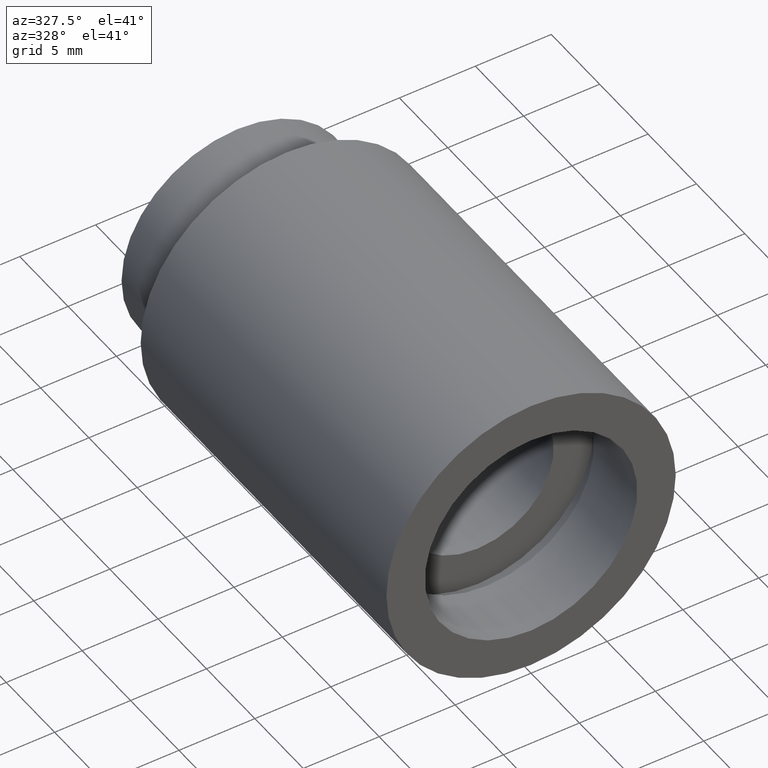
[diagram: clean part render]
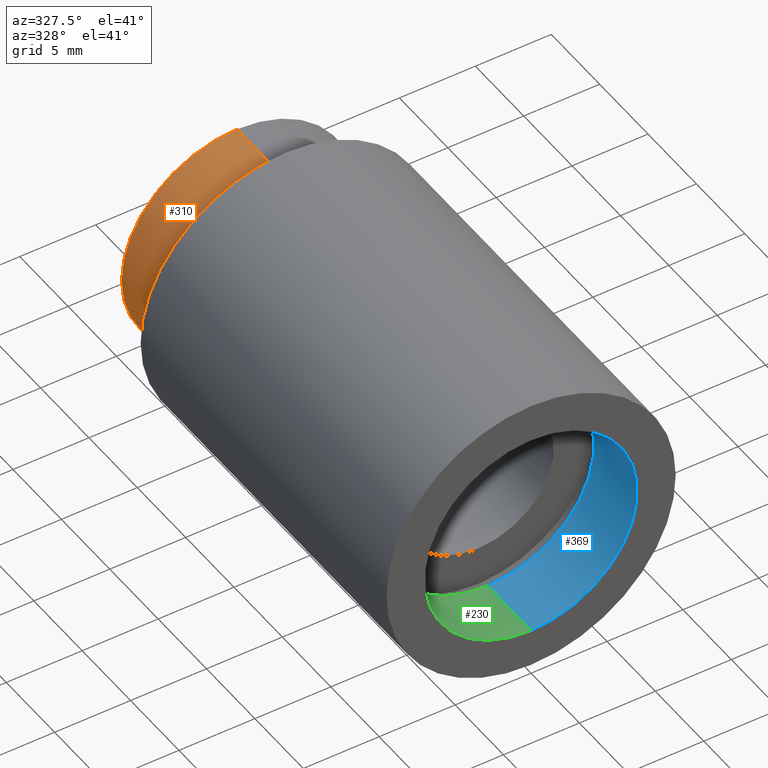
[diagram: same view with three faces highlighted in distinct colors, each labeled with its STEP entity id]
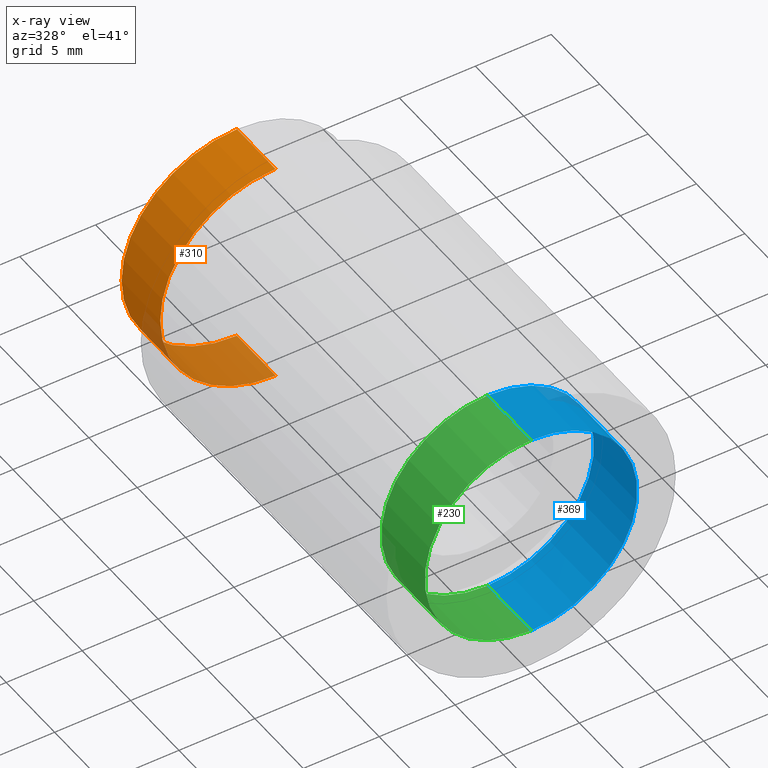
[diagram: x-ray of the same camera — body ghosted, the three highlighted faces saturated]
A machine part, auxiliary view with three faces highlighted in distinct colors.
The next image is the same camera in x-ray (body ghosted, the three faces saturated) — at least one of them is partly hidden behind the body in this view.
Their STEP definitions:

[orange] entity #310 — the highlighted cylindrical surface (partial cylindrical patch) has radius 7.6 mm, axis along (-0, 1, -0).
#2 = VERTEX_POINT ( 'NONE', #529 ) ;
#3 = EDGE_CURVE ( 'NONE', #595, #363, #457, .T. ) ;
#15 = CARTESIAN_POINT ( 'NONE',  ( 0.0000000000000000000, 26.39999999999997700, 0.0000000000000000000 ) ) ;
#20 = CYLINDRICAL_SURFACE ( 'NONE', #211, 7.600000000000014700 ) ;
#23 = CARTESIAN_POINT ( 'NONE',  ( 9.307315673519901200E-016, 161.3761669434274500, -7.600000000000014700 ) ) ;
#36 = DIRECTION ( 'NONE',  ( -0.0000000000000000000, 1.000000000000000000, -0.0000000000000000000 ) ) ;
#55 = ORIENTED_EDGE ( 'NONE', *, *, #106, .T. ) ;
#58 = DIRECTION ( 'NONE',  ( 0.0000000000000000000, 0.0000000000000000000, 1.000000000000000000 ) ) ;
#62 = EDGE_CURVE ( 'NONE', #98, #2, #222, .T. ) ;
#98 = VERTEX_POINT ( 'NONE', #586 ) ;
#106 = EDGE_CURVE ( 'NONE', #2, #363, #431, .T. ) ;
#107 = CARTESIAN_POINT ( 'NONE',  ( 9.307315673519901200E-016, 30.39999999999998400, -7.600000000000014700 ) ) ;
#109 = ORIENTED_EDGE ( 'NONE', *, *, #160, .F. ) ;
#135 = AXIS2_PLACEMENT_3D ( 'NONE', #291, #489, #58 ) ;
#160 = EDGE_CURVE ( 'NONE', #98, #595, #198, .T. ) ;
#198 = LINE ( 'NONE', #23, #229 ) ;
#203 = AXIS2_PLACEMENT_3D ( 'NONE', #15, #541, #493 ) ;
#211 = AXIS2_PLACEMENT_3D ( 'NONE', #612, #381, #508 ) ;
#219 = ORIENTED_EDGE ( 'NONE', *, *, #62, .T. ) ;
#222 = CIRCLE ( 'NONE', #203, 7.600000000000014700 ) ;
#227 = CARTESIAN_POINT ( 'NONE',  ( 0.0000000000000000000, 30.39999999999998400, 7.600000000000014700 ) ) ;
#229 = VECTOR ( 'NONE', #36, 1000.000000000000000 ) ;
#261 = CARTESIAN_POINT ( 'NONE',  ( 0.0000000000000000000, 161.3761669434274500, 7.600000000000014700 ) ) ;
#291 = CARTESIAN_POINT ( 'NONE',  ( 0.0000000000000000000, 30.39999999999998400, 0.0000000000000000000 ) ) ;
#304 = DIRECTION ( 'NONE',  ( -0.0000000000000000000, 1.000000000000000000, -0.0000000000000000000 ) ) ;
#310 = ADVANCED_FACE ( 'NONE', ( #464 ), #20, .T. ) ;
#353 = ORIENTED_EDGE ( 'NONE', *, *, #3, .F. ) ;
#363 = VERTEX_POINT ( 'NONE', #227 ) ;
#380 = VECTOR ( 'NONE', #304, 1000.000000000000000 ) ;
#381 = DIRECTION ( 'NONE',  ( -0.0000000000000000000, 1.000000000000000000, -0.0000000000000000000 ) ) ;
#431 = LINE ( 'NONE', #261, #380 ) ;
#457 = CIRCLE ( 'NONE', #135, 7.600000000000014700 ) ;
#464 = FACE_OUTER_BOUND ( 'NONE', #584, .T. ) ;
#489 = DIRECTION ( 'NONE',  ( -0.0000000000000000000, 1.000000000000000000, -0.0000000000000000000 ) ) ;
#493 = DIRECTION ( 'NONE',  ( 0.0000000000000000000, 0.0000000000000000000, 1.000000000000000000 ) ) ;
#508 = DIRECTION ( 'NONE',  ( 0.0000000000000000000, 0.0000000000000000000, 1.000000000000000000 ) ) ;
#529 = CARTESIAN_POINT ( 'NONE',  ( 0.0000000000000000000, 26.39999999999997700, 7.600000000000014700 ) ) ;
#541 = DIRECTION ( 'NONE',  ( -0.0000000000000000000, 1.000000000000000000, -0.0000000000000000000 ) ) ;
#584 = EDGE_LOOP ( 'NONE', ( #109, #219, #55, #353 ) ) ;
#586 = CARTESIAN_POINT ( 'NONE',  ( 9.307315673519901200E-016, 26.39999999999997700, -7.600000000000014700 ) ) ;
#595 = VERTEX_POINT ( 'NONE', #107 ) ;
#612 = CARTESIAN_POINT ( 'NONE',  ( 0.0000000000000000000, 161.3761669434274500, 0.0000000000000000000 ) ) ;

[blue] entity #369 — the highlighted cylindrical surface (partial cylindrical patch) has radius 7 mm, axis along (-0, 1, -0).
#31 = EDGE_CURVE ( 'NONE', #437, #413, #221, .T. ) ;
#41 = AXIS2_PLACEMENT_3D ( 'NONE', #151, #108, #391 ) ;
#63 = DIRECTION ( 'NONE',  ( -0.0000000000000000000, 1.000000000000000000, -0.0000000000000000000 ) ) ;
#64 = ORIENTED_EDGE ( 'NONE', *, *, #476, .T. ) ;
#100 = FACE_OUTER_BOUND ( 'NONE', #225, .T. ) ;
#108 = DIRECTION ( 'NONE',  ( -0.0000000000000000000, 1.000000000000000000, -0.0000000000000000000 ) ) ;
#141 = CARTESIAN_POINT ( 'NONE',  ( 0.0000000000000000000, 161.3761669434274500, 7.000000000000020400 ) ) ;
#150 = CARTESIAN_POINT ( 'NONE',  ( 8.572527594031496900E-016, 161.3761669434274500, -7.000000000000020400 ) ) ;
#151 = CARTESIAN_POINT ( 'NONE',  ( 0.0000000000000000000, -2.775557561562891400E-014, 0.0000000000000000000 ) ) ;
#164 = CIRCLE ( 'NONE', #587, 7.000000000000020400 ) ;
#197 = DIRECTION ( 'NONE',  ( -0.0000000000000000000, 1.000000000000000000, -0.0000000000000000000 ) ) ;
#221 = CIRCLE ( 'NONE', #41, 7.000000000000019500 ) ;
#225 = EDGE_LOOP ( 'NONE', ( #360, #486, #330, #64 ) ) ;
#231 = EDGE_CURVE ( 'NONE', #437, #419, #620, .T. ) ;
#281 = CARTESIAN_POINT ( 'NONE',  ( 0.0000000000000000000, -2.775557561562891400E-014, 7.000000000000019500 ) ) ;
#289 = CARTESIAN_POINT ( 'NONE',  ( 0.0000000000000000000, 161.3761669434274500, 0.0000000000000000000 ) ) ;
#292 = CYLINDRICAL_SURFACE ( 'NONE', #345, 7.000000000000020400 ) ;
#330 = ORIENTED_EDGE ( 'NONE', *, *, #231, .T. ) ;
#331 = DIRECTION ( 'NONE',  ( -0.0000000000000000000, 1.000000000000000000, -0.0000000000000000000 ) ) ;
#339 = CARTESIAN_POINT ( 'NONE',  ( 0.0000000000000000000, 4.499999999999976000, 7.000000000000020400 ) ) ;
#341 = CARTESIAN_POINT ( 'NONE',  ( 8.572527594031495900E-016, -2.775557561562891400E-014, -7.000000000000019500 ) ) ;
#342 = LINE ( 'NONE', #150, #429 ) ;
#343 = DIRECTION ( 'NONE',  ( -0.0000000000000000000, 1.000000000000000000, -0.0000000000000000000 ) ) ;
#344 = CARTESIAN_POINT ( 'NONE',  ( 8.572527594031496900E-016, 4.499999999999976000, -7.000000000000020400 ) ) ;
#345 = AXIS2_PLACEMENT_3D ( 'NONE', #289, #197, #475 ) ;
#360 = ORIENTED_EDGE ( 'NONE', *, *, #454, .F. ) ;
#369 = ADVANCED_FACE ( 'NONE', ( #100 ), #292, .F. ) ;
#391 = DIRECTION ( 'NONE',  ( 0.0000000000000000000, 0.0000000000000000000, 1.000000000000000000 ) ) ;
#413 = VERTEX_POINT ( 'NONE', #341 ) ;
#419 = VERTEX_POINT ( 'NONE', #339 ) ;
#429 = VECTOR ( 'NONE', #343, 1000.000000000000000 ) ;
#437 = VERTEX_POINT ( 'NONE', #281 ) ;
#440 = VECTOR ( 'NONE', #331, 1000.000000000000000 ) ;
#454 = EDGE_CURVE ( 'NONE', #413, #592, #342, .T. ) ;
#475 = DIRECTION ( 'NONE',  ( 0.0000000000000000000, 0.0000000000000000000, 1.000000000000000000 ) ) ;
#476 = EDGE_CURVE ( 'NONE', #419, #592, #164, .T. ) ;
#486 = ORIENTED_EDGE ( 'NONE', *, *, #31, .F. ) ;
#528 = CARTESIAN_POINT ( 'NONE',  ( 0.0000000000000000000, 4.499999999999976000, 0.0000000000000000000 ) ) ;
#582 = DIRECTION ( 'NONE',  ( 0.0000000000000000000, 0.0000000000000000000, 1.000000000000000000 ) ) ;
#587 = AXIS2_PLACEMENT_3D ( 'NONE', #528, #63, #582 ) ;
#592 = VERTEX_POINT ( 'NONE', #344 ) ;
#620 = LINE ( 'NONE', #141, #440 ) ;

[green] entity #230 — the highlighted cylindrical surface (partial cylindrical patch) has radius 7 mm, axis along (-0, 1, -0).
#52 = DIRECTION ( 'NONE',  ( 0.0000000000000000000, 0.0000000000000000000, 1.000000000000000000 ) ) ;
#141 = CARTESIAN_POINT ( 'NONE',  ( 0.0000000000000000000, 161.3761669434274500, 7.000000000000020400 ) ) ;
#148 = DIRECTION ( 'NONE',  ( -0.0000000000000000000, 1.000000000000000000, -0.0000000000000000000 ) ) ;
#150 = CARTESIAN_POINT ( 'NONE',  ( 8.572527594031496900E-016, 161.3761669434274500, -7.000000000000020400 ) ) ;
#153 = CARTESIAN_POINT ( 'NONE',  ( 0.0000000000000000000, -2.775557561562891400E-014, 0.0000000000000000000 ) ) ;
#174 = ORIENTED_EDGE ( 'NONE', *, *, #454, .T. ) ;
#206 = CIRCLE ( 'NONE', #266, 7.000000000000019500 ) ;
#230 = ADVANCED_FACE ( 'NONE', ( #252 ), #561, .F. ) ;
#231 = EDGE_CURVE ( 'NONE', #437, #419, #620, .T. ) ;
#250 = DIRECTION ( 'NONE',  ( 0.0000000000000000000, 0.0000000000000000000, 1.000000000000000000 ) ) ;
#252 = FACE_OUTER_BOUND ( 'NONE', #290, .T. ) ;
#266 = AXIS2_PLACEMENT_3D ( 'NONE', #153, #484, #250 ) ;
#267 = DIRECTION ( 'NONE',  ( -0.0000000000000000000, 1.000000000000000000, -0.0000000000000000000 ) ) ;
#270 = ORIENTED_EDGE ( 'NONE', *, *, #231, .F. ) ;
#281 = CARTESIAN_POINT ( 'NONE',  ( 0.0000000000000000000, -2.775557561562891400E-014, 7.000000000000019500 ) ) ;
#290 = EDGE_LOOP ( 'NONE', ( #370, #174, #589, #270 ) ) ;
#331 = DIRECTION ( 'NONE',  ( -0.0000000000000000000, 1.000000000000000000, -0.0000000000000000000 ) ) ;
#339 = CARTESIAN_POINT ( 'NONE',  ( 0.0000000000000000000, 4.499999999999976000, 7.000000000000020400 ) ) ;
#341 = CARTESIAN_POINT ( 'NONE',  ( 8.572527594031495900E-016, -2.775557561562891400E-014, -7.000000000000019500 ) ) ;
#342 = LINE ( 'NONE', #150, #429 ) ;
#343 = DIRECTION ( 'NONE',  ( -0.0000000000000000000, 1.000000000000000000, -0.0000000000000000000 ) ) ;
#344 = CARTESIAN_POINT ( 'NONE',  ( 8.572527594031496900E-016, 4.499999999999976000, -7.000000000000020400 ) ) ;
#370 = ORIENTED_EDGE ( 'NONE', *, *, #571, .F. ) ;
#379 = DIRECTION ( 'NONE',  ( 0.0000000000000000000, 0.0000000000000000000, 1.000000000000000000 ) ) ;
#413 = VERTEX_POINT ( 'NONE', #341 ) ;
#419 = VERTEX_POINT ( 'NONE', #339 ) ;
#429 = VECTOR ( 'NONE', #343, 1000.000000000000000 ) ;
#432 = CARTESIAN_POINT ( 'NONE',  ( 0.0000000000000000000, 4.499999999999976000, 0.0000000000000000000 ) ) ;
#433 = EDGE_CURVE ( 'NONE', #592, #419, #543, .T. ) ;
#437 = VERTEX_POINT ( 'NONE', #281 ) ;
#440 = VECTOR ( 'NONE', #331, 1000.000000000000000 ) ;
#451 = AXIS2_PLACEMENT_3D ( 'NONE', #600, #267, #379 ) ;
#454 = EDGE_CURVE ( 'NONE', #413, #592, #342, .T. ) ;
#484 = DIRECTION ( 'NONE',  ( -0.0000000000000000000, 1.000000000000000000, -0.0000000000000000000 ) ) ;
#510 = AXIS2_PLACEMENT_3D ( 'NONE', #432, #148, #52 ) ;
#543 = CIRCLE ( 'NONE', #510, 7.000000000000020400 ) ;
#561 = CYLINDRICAL_SURFACE ( 'NONE', #451, 7.000000000000020400 ) ;
#571 = EDGE_CURVE ( 'NONE', #413, #437, #206, .T. ) ;
#589 = ORIENTED_EDGE ( 'NONE', *, *, #433, .T. ) ;
#592 = VERTEX_POINT ( 'NONE', #344 ) ;
#600 = CARTESIAN_POINT ( 'NONE',  ( 0.0000000000000000000, 161.3761669434274500, 0.0000000000000000000 ) ) ;
#620 = LINE ( 'NONE', #141, #440 ) ;